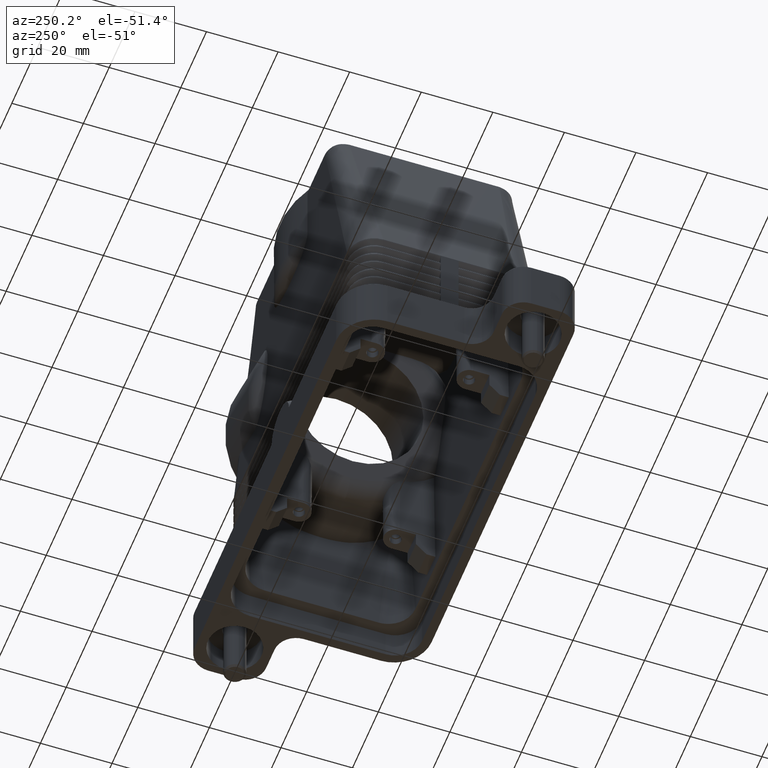
[diagram: clean part render]
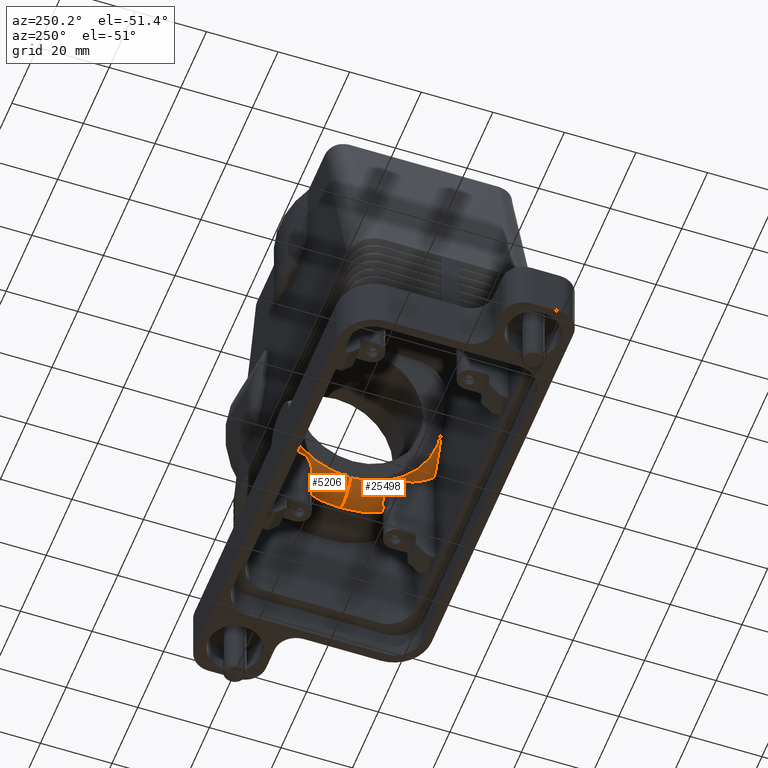
[diagram: same view with one multi-face feature highlighted, each face labeled with its STEP entity id]
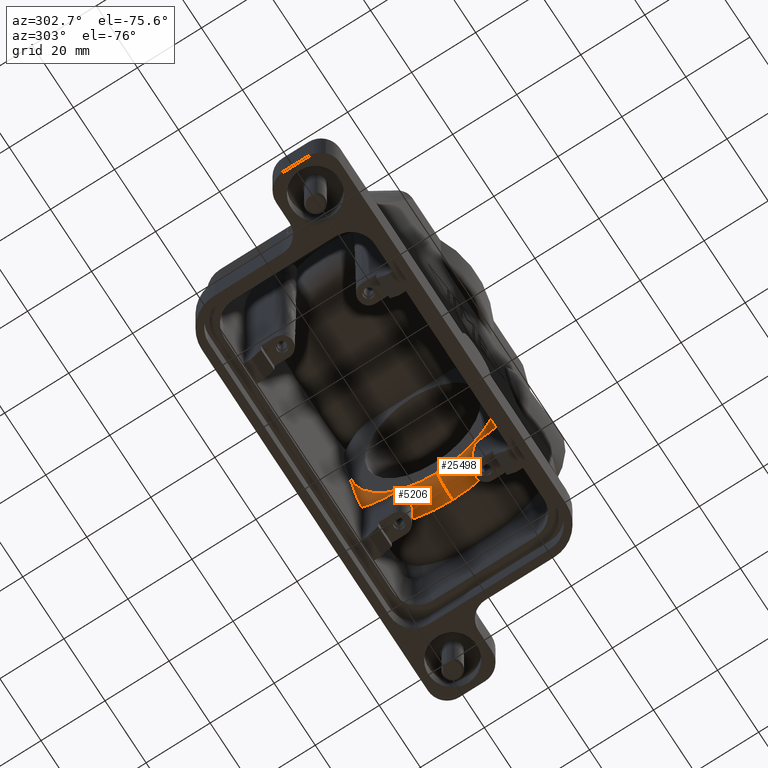
[diagram: same view with one multi-face feature highlighted, each face labeled with its STEP entity id]
A machine part, auxiliary view. The highlighted faces form ONE feature: a constant-radius fillet chain: 2 tangent blend faces with common blend radius 6 mm. The faces share edges in the B-rep.
A second angle (auxiliary view) of the same feature is appended — it is thin or edge-on in the first view.
Their STEP definitions:
[1] entity #5206 (Torus):
#5104=CARTESIAN_POINT('',(24.676321648230601,0.0,59.942572138094377));
#5105=DIRECTION('',(-0.953137879773766,0.0,-0.302536249299766));
#5106=DIRECTION('',(-0.302536249299766,0.0,0.953137879773766));
#5107=AXIS2_PLACEMENT_3D('',#5104,#5105,#5106);
#5108=TOROIDAL_SURFACE('',#5107,22.999999999999993,6.000000000000001);
#5109=CARTESIAN_POINT('',(25.915828103482632,2.816595E-015,36.205183407499185));
#5110=VERTEX_POINT('',#5109);
#5111=CARTESIAN_POINT('',(33.449872877923838,3.551365E-015,32.301573624655177));
#5112=VERTEX_POINT('',#5111);
#5113=CARTESIAN_POINT('',(31.634655382125228,2.816595E-015,38.020400903297769));
#5114=DIRECTION('',(3.704878E-017,-1.000000000000000,-1.167219E-016));
#5115=DIRECTION('',(0.302536249299766,1.224606E-016,-0.953137879773766));
#5116=AXIS2_PLACEMENT_3D('',#5113,#5114,#5115);
#5117=CIRCLE('',#5116,6.000000000000001);
#5118=EDGE_CURVE('',#5110,#5112,#5117,.T.);
#5119=ORIENTED_EDGE('',*,*,#5118,.F.);
#5120=CARTESIAN_POINT('',(18.957494369588005,23.000000000000007,58.127354642295792));
#5121=VERTEX_POINT('',#5120);
#5122=CARTESIAN_POINT('',(18.957494369588009,0.0,58.127354642295785));
#5123=DIRECTION('',(-0.953137879773771,0.0,-0.302536249299748));
#5124=DIRECTION('',(-0.302536249299748,0.0,0.953137879773771));
#5125=AXIS2_PLACEMENT_3D('',#5122,#5123,#5124);
#5126=CIRCLE('',#5125,22.999999999999986);
#5127=EDGE_CURVE('',#5121,#5110,#5126,.T.);
#5128=ORIENTED_EDGE('',*,*,#5127,.F.);
#5129=CARTESIAN_POINT('',(24.963514899107970,23.000000000000007,44.827940994111742));
#5130=VERTEX_POINT('',#5129);
#5131=CARTESIAN_POINT('',(24.963514899107970,23.000000000000007,44.827940994111742));
#5132=CARTESIAN_POINT('',(24.592549962572047,23.000000000000007,45.198366530987073));
#5133=CARTESIAN_POINT('',(24.254889681489349,23.000000000000007,45.600359048783616));
#5134=CARTESIAN_POINT('',(22.716465406960932,23.000000000000007,47.650586228666825));
#5135=CARTESIAN_POINT('',(21.811666764641870,23.000000000000007,49.705510930027266));
#5136=CARTESIAN_POINT('',(20.644490379764822,23.000000000000007,52.892094237623738));
#5137=CARTESIAN_POINT('',(20.287374346039101,23.000000000000007,53.971562370482133));
#5138=CARTESIAN_POINT('',(19.601570447327077,23.000000000000007,56.092938087161890));
#5139=CARTESIAN_POINT('',(19.272560484113100,23.000000000000007,57.134741528719921));
#5140=CARTESIAN_POINT('',(18.957494369588005,23.000000000000007,58.127354642295792));
#5141=B_SPLINE_CURVE_WITH_KNOTS('',3,(#5131,#5132,#5133,#5134,#5135,#5136,#5137,#5138,#5139,#5140),.UNSPECIFIED.,.F.,.U.,(4,2,2,2,4),(2.454425097680706,2.598546364106456,3.223396011553990,3.535820835277757,3.848245659001523),.UNSPECIFIED.);
#5142=EDGE_CURVE('',#5130,#5121,#5141,.T.);
#5143=ORIENTED_EDGE('',*,*,#5142,.F.);
#5144=CARTESIAN_POINT('',(25.011750013593076,13.500000000000000,39.300744335695768));
#5145=VERTEX_POINT('',#5144);
#5146=CARTESIAN_POINT('',(24.963514899107970,23.000000000000007,44.827940994111742));
#5147=CARTESIAN_POINT('',(24.964294398434195,22.914299291556361,44.738619218543121));
#5148=CARTESIAN_POINT('',(24.965061272945931,22.828477808548669,44.650744102689579));
#5149=CARTESIAN_POINT('',(24.973178309802737,21.904336458651592,43.720623806218498));
#5150=CARTESIAN_POINT('',(24.980571993012845,20.911663871320165,42.873391627688605));
#5151=CARTESIAN_POINT('',(24.993464620272196,18.777796016438270,41.396042873418978));
#5152=CARTESIAN_POINT('',(24.998962972801515,17.636553818710151,40.765994079149422));
#5153=CARTESIAN_POINT('',(25.006585491580072,15.624495164277885,39.892539941729375));
#5154=CARTESIAN_POINT('',(25.009762329157461,14.564531191815298,39.528510412056015));
#5155=CARTESIAN_POINT('',(25.011750013593076,13.500000000000000,39.300744335695768));
#5156=B_SPLINE_CURVE_WITH_KNOTS('',3,(#5146,#5147,#5148,#5149,#5150,#5151,#5152,#5153,#5154,#5155),.UNSPECIFIED.,.F.,.U.,(4,2,2,2,4),(1.521950659878362,1.558479344131211,1.915308537402879,2.272137730674547,2.573352930712331),.UNSPECIFIED.);
#5157=EDGE_CURVE('',#5130,#5145,#5156,.T.);
#5158=ORIENTED_EDGE('',*,*,#5157,.T.);
#5159=CARTESIAN_POINT('',(31.953768942653348,13.500000000000000,35.349608076923559));
#5160=VERTEX_POINT('',#5159);
#5161=CARTESIAN_POINT('',(25.011750013593076,13.500000000000000,39.300744335695768));
#5162=CARTESIAN_POINT('',(25.011907377222116,13.415721787338189,39.282712249864730));
#5163=CARTESIAN_POINT('',(25.015161850654572,13.332409415597496,39.259070852013323));
#5164=CARTESIAN_POINT('',(25.039373714082295,13.009595738375268,39.143579271018460));
#5165=CARTESIAN_POINT('',(25.081906064078080,12.773059390362448,39.006264355210639));
#5166=CARTESIAN_POINT('',(25.307938455619009,12.009209519040830,38.374001488557660));
#5167=CARTESIAN_POINT('',(25.583480925588166,11.538423711725446,37.703355478131115));
#5168=CARTESIAN_POINT('',(26.313800250294634,10.761670580857054,36.412186326922480));
#5169=CARTESIAN_POINT('',(26.813775969986736,10.409690720410271,35.711295988983970));
#5170=CARTESIAN_POINT('',(27.831845806346006,10.092696225395084,34.803667953088379));
#5171=CARTESIAN_POINT('',(28.227116523968355,10.041636117190297,34.541570020089367));
#5172=CARTESIAN_POINT('',(28.928304332141209,10.069064758982373,34.207923961302214));
#5173=CARTESIAN_POINT('',(29.245018176735748,10.122317658510054,34.102747575688717));
#5174=CARTESIAN_POINT('',(29.854903822316938,10.320894361402896,33.992186942576048));
#5175=CARTESIAN_POINT('',(30.134727450583259,10.455413080280325,33.982772184520577));
#5176=CARTESIAN_POINT('',(30.714143568733174,10.836305654729617,34.045804005222323));
#5177=CARTESIAN_POINT('',(30.988575986468184,11.093025009657453,34.136805892278453));
#5178=CARTESIAN_POINT('',(31.499428059669278,11.741868455123420,34.418210435094828));
#5179=CARTESIAN_POINT('',(31.709751194497265,12.159600908873411,34.632919872138807));
#5180=CARTESIAN_POINT('',(31.911831235912121,12.899174484478905,35.025674347474485));
#5181=CARTESIAN_POINT('',(31.952360812111106,13.199615573625822,35.188252298882318));
#5182=CARTESIAN_POINT('',(31.953768942653348,13.500000000000000,35.349608076923559));
#5183=B_SPLINE_CURVE_WITH_KNOTS('',3,(#5161,#5162,#5163,#5164,#5165,#5166,#5167,#5168,#5169,#5170,#5171,#5172,#5173,#5174,#5175,#5176,#5177,#5178,#5179,#5180,#5181,#5182),.UNSPECIFIED.,.F.,.U.,(4,2,2,2,2,2,2,2,2,2,4),(-1.357541303106415,-1.323208310890384,-1.223083689571722,-1.002492470409403,-0.781037280375888,-0.647737669986568,-0.543361209485481,-0.446172565515178,-0.325377001543564,-0.170579444470750,-0.068718165381725),.UNSPECIFIED.);
#5184=EDGE_CURVE('',#5145,#5160,#5183,.T.);
#5185=ORIENTED_EDGE('',*,*,#5184,.T.);
#5186=CARTESIAN_POINT('',(31.967914011537392,16.128090886407385,36.970472426332101));
#5187=VERTEX_POINT('',#5186);
#5188=CARTESIAN_POINT('',(31.953768942653348,13.500000000000000,35.349608076923559));
#5189=CARTESIAN_POINT('',(31.956193786783089,14.017271226714820,35.627467692524746));
#5190=CARTESIAN_POINT('',(31.958733884927231,14.516238216117214,35.918534110057500));
#5191=CARTESIAN_POINT('',(31.963283358955209,15.350495860761555,36.439852197722253));
#5192=CARTESIAN_POINT('',(31.965523187718649,15.738954141271675,36.696511152245087));
#5193=CARTESIAN_POINT('',(31.967914011537392,16.128090886407385,36.970472426332101));
#5194=B_SPLINE_CURVE_WITH_KNOTS('',3,(#5188,#5189,#5190,#5191,#5192,#5193),.UNSPECIFIED.,.F.,.U.,(4,2,4),(7.627323078669594,7.788636695131577,7.922450366038807),.UNSPECIFIED.);
#5195=EDGE_CURVE('',#5160,#5187,#5194,.T.);
#5196=ORIENTED_EDGE('',*,*,#5195,.T.);
#5197=CARTESIAN_POINT('',(24.676321648230612,0.0,59.942572138094377));
#5198=DIRECTION('',(-0.953137879773772,0.0,-0.302536249299748));
#5199=DIRECTION('',(-0.302536249299748,0.0,0.953137879773772));
#5200=AXIS2_PLACEMENT_3D('',#5197,#5198,#5199);
#5201=CIRCLE('',#5200,28.999999999999989);
#5202=EDGE_CURVE('',#5187,#5112,#5201,.T.);
#5203=ORIENTED_EDGE('',*,*,#5202,.T.);
#5204=EDGE_LOOP('',(#5119,#5128,#5143,#5158,#5185,#5196,#5203));
#5205=FACE_OUTER_BOUND('',#5204,.T.);
#5206=ADVANCED_FACE('',(#5205),#5108,.T.);
[2] entity #25498 (Torus):
#5109=CARTESIAN_POINT('',(25.915828103482632,2.816595E-015,36.205183407499185));
#5110=VERTEX_POINT('',#5109);
#5111=CARTESIAN_POINT('',(33.449872877923838,3.551365E-015,32.301573624655177));
#5112=VERTEX_POINT('',#5111);
#5113=CARTESIAN_POINT('',(31.634655382125228,2.816595E-015,38.020400903297769));
#5114=DIRECTION('',(3.704878E-017,-1.000000000000000,-1.167219E-016));
#5115=DIRECTION('',(0.302536249299766,1.224606E-016,-0.953137879773766));
#5116=AXIS2_PLACEMENT_3D('',#5113,#5114,#5115);
#5117=CIRCLE('',#5116,6.000000000000001);
#5118=EDGE_CURVE('',#5110,#5112,#5117,.T.);
#24682=CARTESIAN_POINT('',(18.957494369588012,-23.000000000000007,58.127354642295792));
#24683=VERTEX_POINT('',#24682);
#24707=CARTESIAN_POINT('',(24.963514899107967,-23.000000000000007,44.827940994111742));
#24708=VERTEX_POINT('',#24707);
#24709=CARTESIAN_POINT('',(18.957494369588012,-23.000000000000007,58.127354642295792));
#24710=CARTESIAN_POINT('',(19.272560484113111,-23.000000000000007,57.134741528719914));
#24711=CARTESIAN_POINT('',(19.601570447327077,-23.000000000000007,56.092938087161876));
#24712=CARTESIAN_POINT('',(20.287374346039108,-23.000000000000007,53.971562370482111));
#24713=CARTESIAN_POINT('',(20.644490379764825,-23.000000000000007,52.892094237623731));
#24714=CARTESIAN_POINT('',(21.811666764641874,-23.000000000000007,49.705510930027266));
#24715=CARTESIAN_POINT('',(22.716465406960936,-23.000000000000007,47.650586228666825));
#24716=CARTESIAN_POINT('',(24.254889681489352,-23.000000000000007,45.600359048783616));
#24717=CARTESIAN_POINT('',(24.592549962572047,-23.000000000000007,45.198366530987066));
#24718=CARTESIAN_POINT('',(24.963514899107967,-23.000000000000007,44.827940994111742));
#24719=B_SPLINE_CURVE_WITH_KNOTS('',3,(#24709,#24710,#24711,#24712,#24713,#24714,#24715,#24716,#24717,#24718),.UNSPECIFIED.,.F.,.U.,(4,2,2,2,4),(3.848245659001524,4.160670482725291,4.473095306449059,5.097944953896593,5.242066220322342),.UNSPECIFIED.);
#24720=EDGE_CURVE('',#24683,#24708,#24719,.T.);
#25149=CARTESIAN_POINT('',(31.953768942653348,-13.500000000000000,35.349608076923559));
#25150=VERTEX_POINT('',#25149);
#25157=CARTESIAN_POINT('',(31.967914011537392,-16.128090886407385,36.970472426332101));
#25158=VERTEX_POINT('',#25157);
#25159=CARTESIAN_POINT('',(31.967914011537392,-16.128090886407385,36.970472426332101));
#25160=CARTESIAN_POINT('',(31.965523187718649,-15.738954141271675,36.696511152245087));
#25161=CARTESIAN_POINT('',(31.963283358955209,-15.350495860761553,36.439852197722253));
#25162=CARTESIAN_POINT('',(31.958733884927245,-14.516238216120259,35.918534110059412));
#25163=CARTESIAN_POINT('',(31.956193786783071,-14.017271226711250,35.627467692522828));
#25164=CARTESIAN_POINT('',(31.953768942653348,-13.500000000000000,35.349608076923559));
#25165=B_SPLINE_CURVE_WITH_KNOTS('',3,(#25159,#25160,#25161,#25162,#25163,#25164),.UNSPECIFIED.,.F.,.U.,(4,2,4),(4.690050251084908,4.823863921992138,4.985177538453043),.UNSPECIFIED.);
#25166=EDGE_CURVE('',#25158,#25150,#25165,.T.);
#25273=CARTESIAN_POINT('',(25.011750013592998,-13.500000000000000,39.300744335704970));
#25274=VERTEX_POINT('',#25273);
#25281=CARTESIAN_POINT('',(31.953768942653348,-13.500000000000000,35.349608076923559));
#25282=CARTESIAN_POINT('',(31.951806936584578,-13.081462052111343,35.124784449958184));
#25283=CARTESIAN_POINT('',(31.873837706326263,-12.660431063400175,34.895834555014730));
#25284=CARTESIAN_POINT('',(31.582441866656890,-11.914979070465282,34.509198039695534));
#25285=CARTESIAN_POINT('',(31.389190482745132,-11.582546966908856,34.344626759347847));
#25286=CARTESIAN_POINT('',(30.929336405678448,-11.039741577848536,34.118780642276889));
#25287=CARTESIAN_POINT('',(30.686425109052347,-10.820112217154660,34.044420278244132));
#25288=CARTESIAN_POINT('',(30.138435312604020,-10.455995779842894,33.981683297144308));
#25289=CARTESIAN_POINT('',(29.845497704538527,-10.315433638127093,33.991605599772392));
#25290=CARTESIAN_POINT('',(29.226253141670245,-10.118813840083845,34.108633882920415));
#25291=CARTESIAN_POINT('',(28.914811063583535,-10.067775142310794,34.213501241675765));
#25292=CARTESIAN_POINT('',(28.223270258607123,-10.042486602608760,34.544508107982040));
#25293=CARTESIAN_POINT('',(27.832280783230019,-10.093005153094722,34.803833428410826));
#25294=CARTESIAN_POINT('',(26.829982223095609,-10.403920621802328,35.695946399707935));
#25295=CARTESIAN_POINT('',(26.334775936969592,-10.746224356181866,36.381779490843257));
#25296=CARTESIAN_POINT('',(25.671489739896245,-11.439594270958406,37.542675991243513));
#25297=CARTESIAN_POINT('',(25.441493006192285,-11.794814241829300,38.061337385929278));
#25298=CARTESIAN_POINT('',(25.175173383902177,-12.425911696282652,38.735819557816818));
#25299=CARTESIAN_POINT('',(25.114686393210267,-12.649138581645030,38.912231013706197));
#25300=CARTESIAN_POINT('',(25.039816051874702,-13.029924274020061,39.147127315897890));
#25301=CARTESIAN_POINT('',(25.016188609327035,-13.228093486811620,39.235129765403116));
#25302=CARTESIAN_POINT('',(25.011967002734906,-13.463187489498347,39.292590675204814));
#25303=CARTESIAN_POINT('',(25.011784399555481,-13.481584134298082,39.296804094680631));
#25304=CARTESIAN_POINT('',(25.011750013592998,-13.500000000000000,39.300744335704970));
#25305=B_SPLINE_CURVE_WITH_KNOTS('',3,(#25281,#25282,#25283,#25284,#25285,#25286,#25287,#25288,#25289,#25290,#25291,#25292,#25293,#25294,#25295,#25296,#25297,#25298,#25299,#25300,#25301,#25302,#25303,#25304),.UNSPECIFIED.,.F.,.U.,(4,2,2,2,2,2,2,2,2,2,2,4),(0.068864708407143,0.211115735179853,0.332520824100081,0.429764728967362,0.523456874727763,0.617596237031674,0.738110286032321,0.935936464042787,1.096400930820622,1.202845093622341,1.302765682571184,1.311238344140945),.UNSPECIFIED.);
#25306=EDGE_CURVE('',#25150,#25274,#25305,.T.);
#25326=CARTESIAN_POINT('',(25.011750013592998,-13.500000000000000,39.300744335704970));
#25327=CARTESIAN_POINT('',(25.009762329157393,-14.564531191814915,39.528510412064065));
#25328=CARTESIAN_POINT('',(25.006585491580072,-15.624495164278434,39.892539941729616));
#25329=CARTESIAN_POINT('',(24.998962972801515,-17.636553818710151,40.765994079149422));
#25330=CARTESIAN_POINT('',(24.993464620272196,-18.777796016438263,41.396042873418999));
#25331=CARTESIAN_POINT('',(24.980571993012845,-20.911663871320162,42.873391627688626));
#25332=CARTESIAN_POINT('',(24.973178309802737,-21.904336458651596,43.720623806218498));
#25333=CARTESIAN_POINT('',(24.965061272945942,-22.828477808547383,44.650744102688279));
#25334=CARTESIAN_POINT('',(24.964294398434177,-22.914299291557661,44.738619218544471));
#25335=CARTESIAN_POINT('',(24.963514899107967,-23.000000000000007,44.827940994111742));
#25336=B_SPLINE_CURVE_WITH_KNOTS('',3,(#25326,#25327,#25328,#25329,#25330,#25331,#25332,#25333,#25334,#25335),.UNSPECIFIED.,.F.,.U.,(4,2,2,2,4),(7.292257952452714,7.593473152490319,7.950302345761987,8.307131539033655,8.343660223285957),.UNSPECIFIED.);
#25337=EDGE_CURVE('',#25274,#24708,#25336,.T.);
#25468=CARTESIAN_POINT('',(24.676321648230612,0.0,59.942572138094377));
#25469=DIRECTION('',(-0.953137879773772,0.0,-0.302536249299748));
#25470=DIRECTION('',(-0.302536249299748,0.0,0.953137879773772));
#25471=AXIS2_PLACEMENT_3D('',#25468,#25469,#25470);
#25472=CIRCLE('',#25471,28.999999999999989);
#25473=EDGE_CURVE('',#5112,#25158,#25472,.T.);
#25478=CARTESIAN_POINT('',(24.676321648230601,0.0,59.942572138094377));
#25479=DIRECTION('',(-0.953137879773766,0.0,-0.302536249299766));
#25480=DIRECTION('',(-0.302536249299766,0.0,0.953137879773766));
#25481=AXIS2_PLACEMENT_3D('',#25478,#25479,#25480);
#25482=TOROIDAL_SURFACE('',#25481,22.999999999999993,6.000000000000001);
#25483=ORIENTED_EDGE('',*,*,#5118,.T.);
#25484=ORIENTED_EDGE('',*,*,#25473,.T.);
#25485=ORIENTED_EDGE('',*,*,#25166,.T.);
#25486=ORIENTED_EDGE('',*,*,#25306,.T.);
#25487=ORIENTED_EDGE('',*,*,#25337,.T.);
#25488=ORIENTED_EDGE('',*,*,#24720,.F.);
#25489=CARTESIAN_POINT('',(18.957494369588009,0.0,58.127354642295785));
#25490=DIRECTION('',(-0.953137879773771,0.0,-0.302536249299748));
#25491=DIRECTION('',(-0.302536249299748,0.0,0.953137879773771));
#25492=AXIS2_PLACEMENT_3D('',#25489,#25490,#25491);
#25493=CIRCLE('',#25492,22.999999999999986);
#25494=EDGE_CURVE('',#5110,#24683,#25493,.T.);
#25495=ORIENTED_EDGE('',*,*,#25494,.F.);
#25496=EDGE_LOOP('',(#25483,#25484,#25485,#25486,#25487,#25488,#25495));
#25497=FACE_OUTER_BOUND('',#25496,.T.);
#25498=ADVANCED_FACE('',(#25497),#25482,.T.);